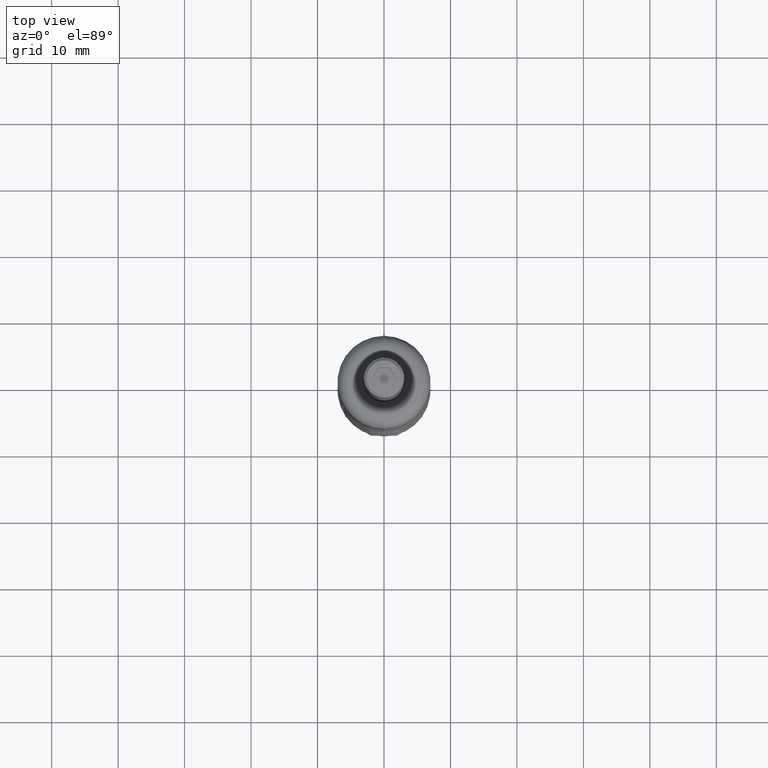
[diagram: clean part render]
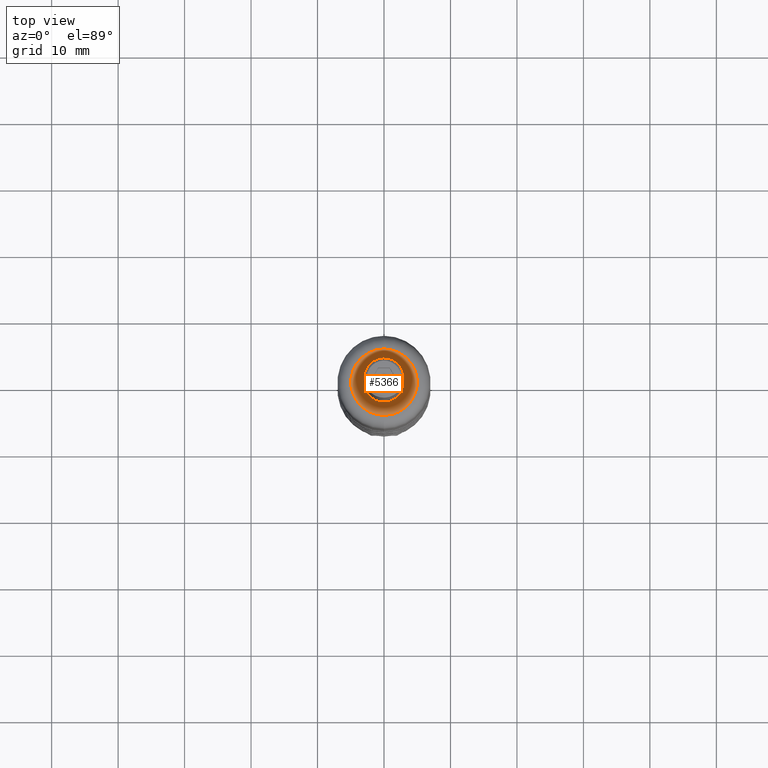
[diagram: same view with one face highlighted and labeled with its STEP entity id]
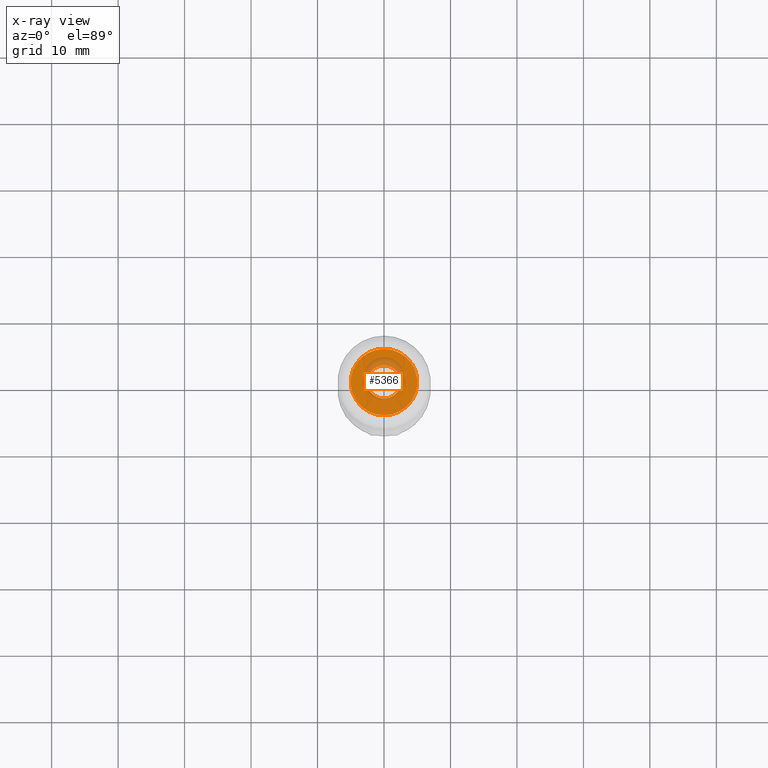
[diagram: x-ray of the same camera — body ghosted, the highlighted face saturated]
A machine part, top view. The second image highlights one B-rep face of the part: STEP entity #5366.
The next image is the same camera in x-ray: the body ghosted, the highlighted face saturated — about 19% of this face is hidden behind the body in this view.
In plain terms, the highlighted planar face has unit normal (0, -0, -1).
Its self-contained STEP definition (entity closure, byte-faithful):
#247 = AXIS2_PLACEMENT_3D ( 'NONE', #12971, #3991, #14433 ) ;
#684 = FACE_OUTER_BOUND ( 'NONE', #5523, .T. ) ;
#1993 = VERTEX_POINT ( 'NONE', #3435 ) ;
#2030 = CIRCLE ( 'NONE', #9048, 2.499999999999997800 ) ;
#2326 = DIRECTION ( 'NONE',  ( -0.0000000000000000000, 5.987083850887820200E-017, 1.000000000000000000 ) ) ;
#2743 = ORIENTED_EDGE ( 'NONE', *, *, #11967, .T. ) ;
#3435 = CARTESIAN_POINT ( 'NONE',  ( -2.499999999999998200, 4.238611246318604900E-015, 35.00000000000000000 ) ) ;
#3991 = DIRECTION ( 'NONE',  ( -0.0000000000000000000, -0.0000000000000000000, 1.000000000000000000 ) ) ;
#4889 = VERTEX_POINT ( 'NONE', #8557 ) ;
#4899 = DIRECTION ( 'NONE',  ( 0.0000000000000000000, 1.000000000000000000, 0.0000000000000000000 ) ) ;
#4907 = AXIS2_PLACEMENT_3D ( 'NONE', #6552, #9083, #7840 ) ;
#5022 = CARTESIAN_POINT ( 'NONE',  ( 0.0000000000000000000, -3.370377402677662700E-031, 35.00000000000000000 ) ) ;
#5290 = EDGE_CURVE ( 'NONE', #16388, #6216, #6957, .T. ) ;
#5366 = ADVANCED_FACE ( 'NONE', ( #684, #14119 ), #9033, .F. ) ;
#5523 = EDGE_LOOP ( 'NONE', ( #2743, #13133 ) ) ;
#6216 = VERTEX_POINT ( 'NONE', #14976 ) ;
#6404 = DIRECTION ( 'NONE',  ( 1.000000000000000000, 0.0000000000000000000, 0.0000000000000000000 ) ) ;
#6552 = CARTESIAN_POINT ( 'NONE',  ( 0.0000000000000000000, 7.000000000000000900, 35.00000000000000000 ) ) ;
#6576 = EDGE_CURVE ( 'NONE', #1993, #4889, #11019, .T. ) ;
#6957 = CIRCLE ( 'NONE', #13725, 4.999999999999990200 ) ;
#7603 = CARTESIAN_POINT ( 'NONE',  ( 7.347880794884107900E-016, -4.999999999999990200, 35.00000000000000000 ) ) ;
#7840 = DIRECTION ( 'NONE',  ( 0.0000000000000000000, 1.000000000000000000, -5.987083850887820200E-017 ) ) ;
#8247 = EDGE_CURVE ( 'NONE', #4889, #1993, #2030, .T. ) ;
#8557 = CARTESIAN_POINT ( 'NONE',  ( 2.499999999999997800, 3.932449546531767800E-015, 35.00000000000000000 ) ) ;
#8721 = CARTESIAN_POINT ( 'NONE',  ( 0.0000000000000000000, -3.370377402677662700E-031, 35.00000000000000000 ) ) ;
#8823 = DIRECTION ( 'NONE',  ( -0.0000000000000000000, -0.0000000000000000000, 1.000000000000000000 ) ) ;
#8877 = EDGE_LOOP ( 'NONE', ( #11301, #13601 ) ) ;
#9033 = PLANE ( 'NONE',  #4907 ) ;
#9048 = AXIS2_PLACEMENT_3D ( 'NONE', #14248, #8823, #6404 ) ;
#9083 = DIRECTION ( 'NONE',  ( 0.0000000000000000000, -5.987083850887820200E-017, -1.000000000000000000 ) ) ;
#11019 = CIRCLE ( 'NONE', #247, 2.499999999999997800 ) ;
#11301 = ORIENTED_EDGE ( 'NONE', *, *, #8247, .F. ) ;
#11494 = AXIS2_PLACEMENT_3D ( 'NONE', #8721, #16718, #15169 ) ;
#11967 = EDGE_CURVE ( 'NONE', #6216, #16388, #13072, .T. ) ;
#12971 = CARTESIAN_POINT ( 'NONE',  ( 0.0000000000000000000, 3.932449546531767800E-015, 35.00000000000000000 ) ) ;
#13072 = CIRCLE ( 'NONE', #11494, 4.999999999999990200 ) ;
#13133 = ORIENTED_EDGE ( 'NONE', *, *, #5290, .T. ) ;
#13601 = ORIENTED_EDGE ( 'NONE', *, *, #6576, .F. ) ;
#13725 = AXIS2_PLACEMENT_3D ( 'NONE', #5022, #2326, #4899 ) ;
#14119 = FACE_BOUND ( 'NONE', #8877, .T. ) ;
#14248 = CARTESIAN_POINT ( 'NONE',  ( 0.0000000000000000000, 3.932449546531767800E-015, 35.00000000000000000 ) ) ;
#14433 = DIRECTION ( 'NONE',  ( 1.000000000000000000, 0.0000000000000000000, 0.0000000000000000000 ) ) ;
#14976 = CARTESIAN_POINT ( 'NONE',  ( 0.0000000000000000000, 4.999999999999990200, 35.00000000000000000 ) ) ;
#15169 = DIRECTION ( 'NONE',  ( 0.0000000000000000000, 1.000000000000000000, 0.0000000000000000000 ) ) ;
#16388 = VERTEX_POINT ( 'NONE', #7603 ) ;
#16718 = DIRECTION ( 'NONE',  ( -0.0000000000000000000, 5.987083850887820200E-017, 1.000000000000000000 ) ) ;